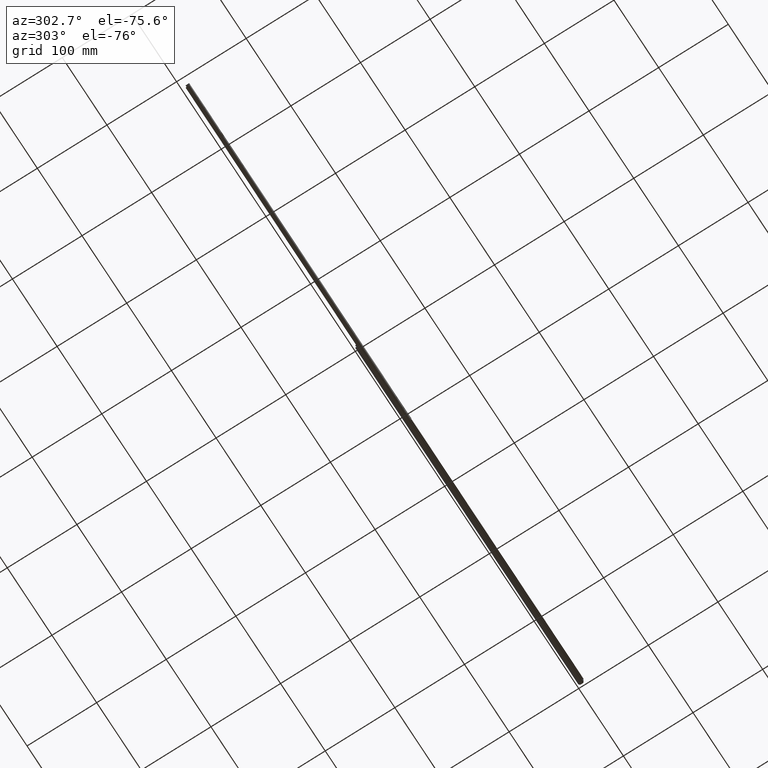
[diagram: clean part render]
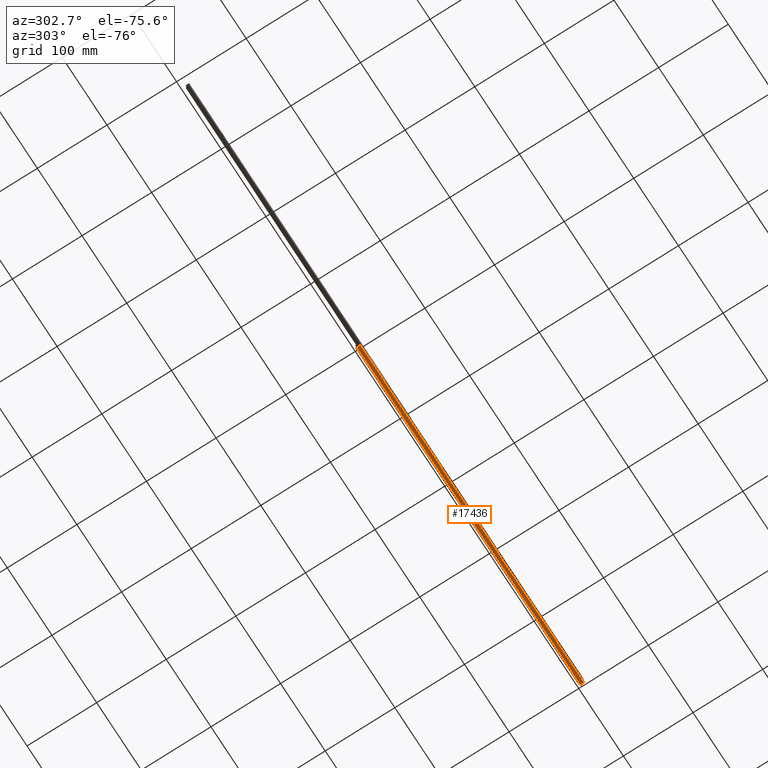
[diagram: same view with one face highlighted and labeled with its STEP entity id]
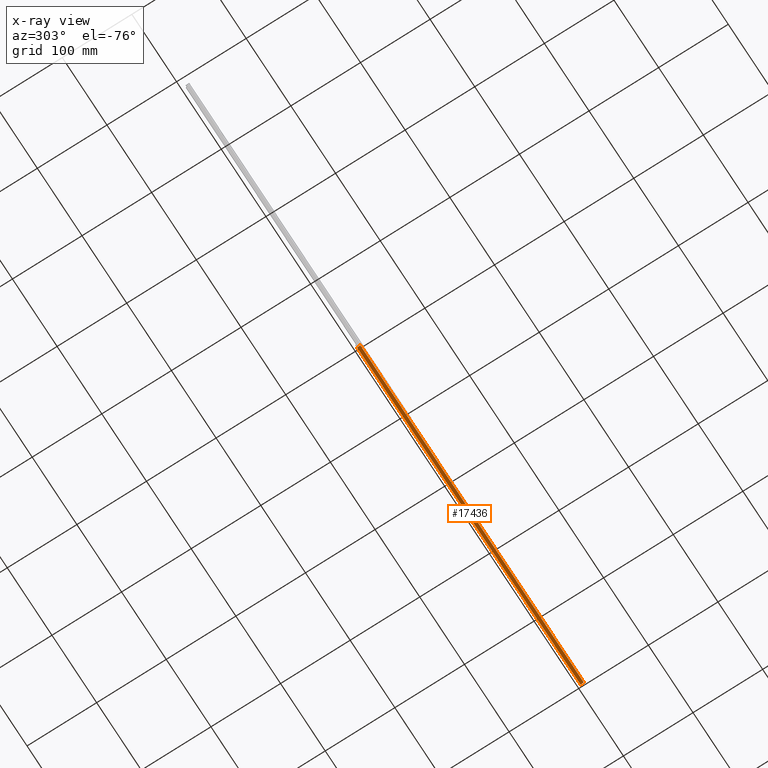
[diagram: x-ray of the same camera — body ghosted, the highlighted face saturated]
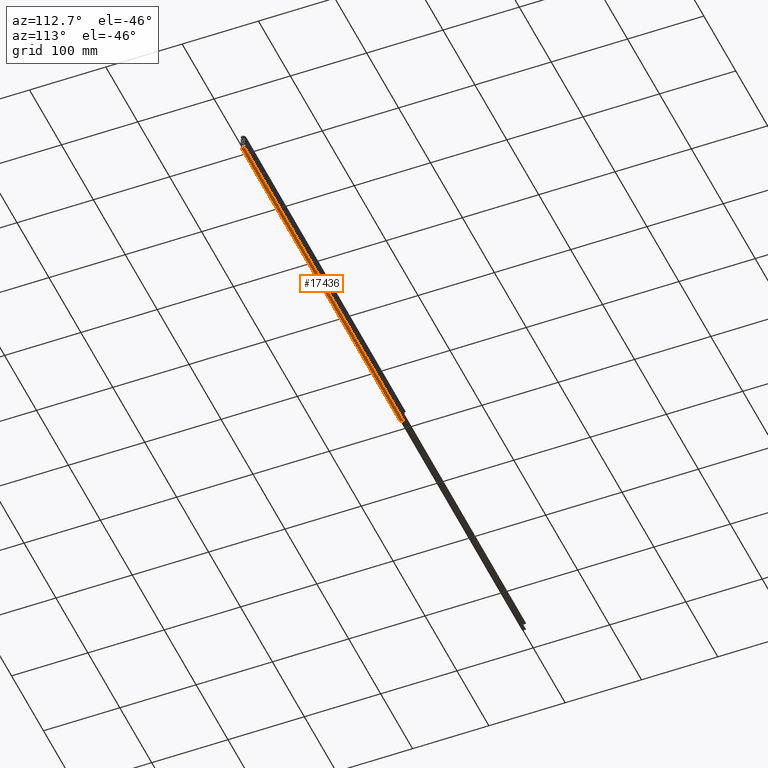
[diagram: same view with one face highlighted and labeled with its STEP entity id]
A machine part, auxiliary view. The second image highlights one B-rep face of the part: STEP entity #17436.
The next image is the same camera in x-ray: the body ghosted, the highlighted face saturated — about 0% of this face is hidden behind the body in this view.
A second angle (auxiliary view) of the same face is appended — the face is thin or edge-on in the first view.
In plain terms, the highlighted face is a freeform B-spline surface patch.
Its self-contained STEP definition (entity closure, byte-faithful):
#16027=CARTESIAN_POINT('',(499.978470043576980,-7.078071239486540,-8.522037986979019));
#16028=VERTEX_POINT('',#16027);
#16042=CARTESIAN_POINT('',(500.0,-6.945557355833350,-8.728427000000210));
#16043=VERTEX_POINT('',#16042);
#16044=CARTESIAN_POINT('',(499.978470043576980,-7.078071239486540,-8.522037986979019));
#16045=CARTESIAN_POINT('',(499.993242560201110,-7.037063546983048,-8.592073159033577));
#16046=CARTESIAN_POINT('',(500.0,-6.992917199756228,-8.660929248244701));
#16047=CARTESIAN_POINT('',(500.0,-6.945557355833560,-8.728427000000000));
#16048=QUASI_UNIFORM_CURVE('',3,(#16044,#16045,#16046,#16047),.UNSPECIFIED.,.F.,.U.);
#16049=EDGE_CURVE('',#16028,#16043,#16048,.T.);
#16223=CARTESIAN_POINT('',(0.0,-2.466980000000175,-9.201561000000000));
#16224=VERTEX_POINT('',#16223);
#16230=CARTESIAN_POINT('',(0.0,-7.078071239486619,-8.522037986978919));
#16231=VERTEX_POINT('',#16230);
#16232=CARTESIAN_POINT('',(0.0,-7.078071239486623,-8.522037986978919));
#16233=CARTESIAN_POINT('',(0.0,-6.353743143967781,-9.759084982229698));
#16234=CARTESIAN_POINT('',(0.0,-4.935554901319296,-9.968079161169062));
#16235=CARTESIAN_POINT('',(0.0,-3.517366658670809,-10.177073340108425));
#16236=CARTESIAN_POINT('',(0.0,-2.466980000000175,-9.201561000000000));
#16244=(BOUNDED_CURVE()B_SPLINE_CURVE(2,(#16232,#16233,#16234,#16235,#16236),.UNSPECIFIED.,.F.,.U.)B_SPLINE_CURVE_WITH_KNOTS((3,2,3),(0.0,0.500000000000000,1.0),.UNSPECIFIED.)CURVE()GEOMETRIC_REPRESENTATION_ITEM()RATIONAL_B_SPLINE_CURVE((1.0,0.901581331480265,1.0,0.901581331480265,1.0))REPRESENTATION_ITEM(''));
#16245=EDGE_CURVE('',#16231,#16224,#16244,.T.);
#16942=CARTESIAN_POINT('',(500.0,-2.466979999999921,-9.201561000000101));
#16943=VERTEX_POINT('',#16942);
#16944=CARTESIAN_POINT('',(500.0,-6.945557355833351,-8.728427000000211));
#16945=CARTESIAN_POINT('',(499.999999999999940,-6.165119425343325,-9.840715414181654));
#16946=CARTESIAN_POINT('',(500.0,-4.813864144514566,-9.983467106648732));
#16947=CARTESIAN_POINT('',(499.999999999999940,-3.462608863685807,-10.126218799115806));
#16948=CARTESIAN_POINT('',(500.0,-2.466979999999921,-9.201561000000101));
#16956=(BOUNDED_CURVE()B_SPLINE_CURVE(2,(#16944,#16945,#16946,#16947,#16948),.UNSPECIFIED.,.F.,.U.)B_SPLINE_CURVE_WITH_KNOTS((3,2,3),(0.0,0.500000000000000,1.0),.UNSPECIFIED.)CURVE()GEOMETRIC_REPRESENTATION_ITEM()RATIONAL_B_SPLINE_CURVE((1.0,0.910272306830958,1.0,0.910272306830958,1.0))REPRESENTATION_ITEM(''));
#16957=EDGE_CURVE('',#16043,#16943,#16956,.T.);
#17149=CARTESIAN_POINT('',(499.978470043576980,-7.078071239486540,-8.522037986979019));
#17150=CARTESIAN_POINT('',(0.0,-7.078071239486619,-8.522037986978919));
#17151=QUASI_UNIFORM_CURVE('',1,(#17149,#17150),.UNSPECIFIED.,.F.,.U.);
#17152=EDGE_CURVE('',#16028,#16231,#17151,.T.);
#17166=CARTESIAN_POINT('',(500.0,-2.466979999999921,-9.201561000000101));
#17167=CARTESIAN_POINT('',(0.0,-2.466980000000175,-9.201561000000000));
#17168=QUASI_UNIFORM_CURVE('',1,(#17166,#17167),.UNSPECIFIED.,.F.,.U.);
#17169=EDGE_CURVE('',#16943,#16224,#17168,.T.);
#17415=CARTESIAN_POINT('',(512.500000000000110,-7.141462609117079,-8.408147353251051));
#17416=CARTESIAN_POINT('',(-12.812500000000000,-7.141462609117079,-8.408147353251051));
#17417=CARTESIAN_POINT('',(512.500000000000000,-5.220518824749028,-12.043808732040411));
#17418=CARTESIAN_POINT('',(-12.812500000000000,-5.220518824749028,-12.043808732040411));
#17419=CARTESIAN_POINT('',(512.500000000000110,-2.356403654017433,-9.093401476641938));
#17420=CARTESIAN_POINT('',(-12.812500000000000,-2.356403654017433,-9.093401476641938));
#17428=(BOUNDED_SURFACE()B_SPLINE_SURFACE(1,2,((#17415,#17417,#17419),(#17416,#17418,#17420)),.UNSPECIFIED.,.F.,.F.,.U.)B_SPLINE_SURFACE_WITH_KNOTS((2,2),(3,3),(0.0,525.312500000000230),(0.0,6.088829121458419),.UNSPECIFIED.)GEOMETRIC_REPRESENTATION_ITEM()RATIONAL_B_SPLINE_SURFACE(((1.0,0.587785252292473,1.0),(1.0,0.587785252292473,1.0)))REPRESENTATION_ITEM('')SURFACE());
#17429=ORIENTED_EDGE('',*,*,#16049,.F.);
#17430=ORIENTED_EDGE('',*,*,#17152,.T.);
#17431=ORIENTED_EDGE('',*,*,#16245,.T.);
#17432=ORIENTED_EDGE('',*,*,#17169,.F.);
#17433=ORIENTED_EDGE('',*,*,#16957,.F.);
#17434=EDGE_LOOP('',(#17429,#17430,#17431,#17432,#17433));
#17435=FACE_OUTER_BOUND('',#17434,.T.);
#17436=ADVANCED_FACE('',(#17435),#17428,.T.);